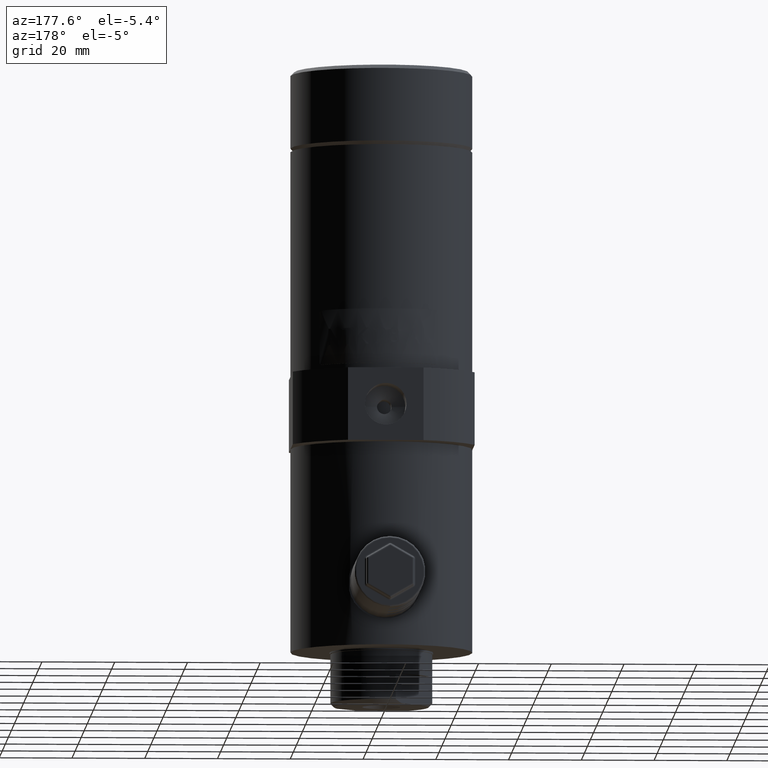
[diagram: clean part render]
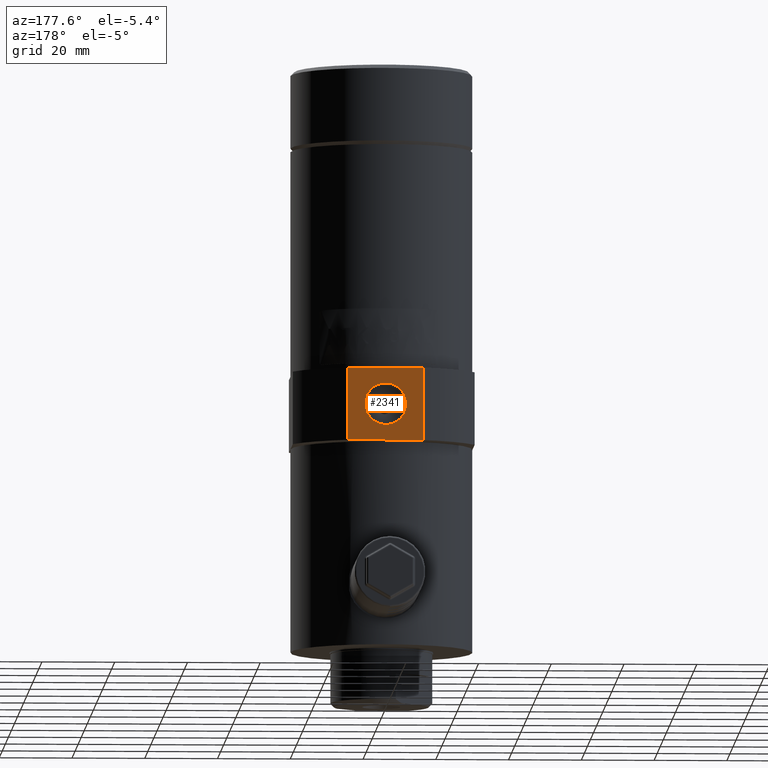
[diagram: same view with one face highlighted and labeled with its STEP entity id]
A machine part, auxiliary view. The second image highlights one B-rep face of the part: STEP entity #2341.
In plain terms, the highlighted planar face has unit normal (0, -1, 0).
Its self-contained STEP definition (entity closure, byte-faithful):
#229 = CARTESIAN_POINT ( 'NONE',  ( 10.39230484541330000, 29.00000000000000000, 5.524683141629100000 ) ) ;
#312 = ORIENTED_EDGE ( 'NONE', *, *, #1903, .F. ) ;
#369 = CARTESIAN_POINT ( 'NONE',  ( -1.999965133326399800E-015, 29.00000000000000000, 71.52468314162909700 ) ) ;
#382 = ORIENTED_EDGE ( 'NONE', *, *, #2523, .F. ) ;
#427 = VECTOR ( 'NONE', #6482, 1000.000000000000000 ) ;
#608 = EDGE_LOOP ( 'NONE', ( #1504, #5013, #2449, #5599 ) ) ;
#703 = VECTOR ( 'NONE', #2202, 1000.000000000000000 ) ;
#781 = DIRECTION ( 'NONE',  ( -2.574111338686239600E-017, 1.838534389698700000E-016, 1.000000000000000000 ) ) ;
#813 = DIRECTION ( 'NONE',  ( -1.000000000000000000, 0.0000000000000000000, 0.0000000000000000000 ) ) ;
#854 = VECTOR ( 'NONE', #2973, 1000.000000000000000 ) ;
#940 = VERTEX_POINT ( 'NONE', #4412 ) ;
#1234 = PLANE ( 'NONE',  #2772 ) ;
#1295 = CARTESIAN_POINT ( 'NONE',  ( -10.39230484541326000, 29.00000000000000000, 81.52468314162909700 ) ) ;
#1487 = VERTEX_POINT ( 'NONE', #1948 ) ;
#1504 = ORIENTED_EDGE ( 'NONE', *, *, #1933, .F. ) ;
#1611 = AXIS2_PLACEMENT_3D ( 'NONE', #369, #1860, #813 ) ;
#1765 = LINE ( 'NONE', #229, #5774 ) ;
#1860 = DIRECTION ( 'NONE',  ( -1.038109137218916000E-017, 1.000000000000000000, -1.038109137218916000E-017 ) ) ;
#1898 = CARTESIAN_POINT ( 'NONE',  ( 10.39230484541327800, 29.00000000000000000, 61.52468314162910400 ) ) ;
#1903 = EDGE_CURVE ( 'NONE', #940, #1487, #4861, .T. ) ;
#1933 = EDGE_CURVE ( 'NONE', #2121, #6092, #4130, .T. ) ;
#1948 = CARTESIAN_POINT ( 'NONE',  ( -5.722500000000001900, 29.00000000000000000, 71.52468314162909700 ) ) ;
#2121 = VERTEX_POINT ( 'NONE', #3674 ) ;
#2202 = DIRECTION ( 'NONE',  ( -1.000000000000000000, -1.038109137218916000E-017, -2.574111338686239600E-017 ) ) ;
#2341 = ADVANCED_FACE ( 'NONE', ( #6478, #2514 ), #1234, .F. ) ;
#2430 = DIRECTION ( 'NONE',  ( -1.000000000000000000, 0.0000000000000000000, 0.0000000000000000000 ) ) ;
#2449 = ORIENTED_EDGE ( 'NONE', *, *, #5286, .T. ) ;
#2514 = FACE_OUTER_BOUND ( 'NONE', #608, .T. ) ;
#2523 = EDGE_CURVE ( 'NONE', #1487, #940, #6293, .T. ) ;
#2559 = LINE ( 'NONE', #4221, #703 ) ;
#2772 = AXIS2_PLACEMENT_3D ( 'NONE', #3884, #6428, #781 ) ;
#2950 = CARTESIAN_POINT ( 'NONE',  ( -1.999965133326399800E-015, 29.00000000000000000, 71.52468314162909700 ) ) ;
#2973 = DIRECTION ( 'NONE',  ( 2.574111338686239600E-017, -1.038109137218916000E-017, -1.000000000000000000 ) ) ;
#3447 = CARTESIAN_POINT ( 'NONE',  ( -10.39230484541330000, 29.00000000000000000, 5.524683141629100000 ) ) ;
#3587 = VERTEX_POINT ( 'NONE', #6605 ) ;
#3674 = CARTESIAN_POINT ( 'NONE',  ( 10.39230484541326000, 29.00000000000000000, 81.52468314162909700 ) ) ;
#3884 = CARTESIAN_POINT ( 'NONE',  ( 28.00000000000000000, 29.00000000000000000, 81.52468314162909700 ) ) ;
#3971 = DIRECTION ( 'NONE',  ( -1.038109137218916000E-017, 1.000000000000000000, -1.038109137218916000E-017 ) ) ;
#4130 = LINE ( 'NONE', #5947, #427 ) ;
#4221 = CARTESIAN_POINT ( 'NONE',  ( -1.742553999457780200E-015, 29.00000000000000000, 61.52468314162910400 ) ) ;
#4322 = VERTEX_POINT ( 'NONE', #1898 ) ;
#4412 = CARTESIAN_POINT ( 'NONE',  ( 5.722499999999998400, 29.00000000000000000, 71.52468314162909700 ) ) ;
#4861 = CIRCLE ( 'NONE', #1611, 5.722500000000000100 ) ;
#4883 = EDGE_CURVE ( 'NONE', #4322, #2121, #1765, .T. ) ;
#5013 = ORIENTED_EDGE ( 'NONE', *, *, #4883, .F. ) ;
#5286 = EDGE_CURVE ( 'NONE', #4322, #3587, #2559, .T. ) ;
#5599 = ORIENTED_EDGE ( 'NONE', *, *, #5819, .F. ) ;
#5676 = EDGE_LOOP ( 'NONE', ( #382, #312 ) ) ;
#5774 = VECTOR ( 'NONE', #5812, 1000.000000000000000 ) ;
#5812 = DIRECTION ( 'NONE',  ( -2.574111338686239600E-017, 1.038109137218916000E-017, 1.000000000000000000 ) ) ;
#5819 = EDGE_CURVE ( 'NONE', #6092, #3587, #6438, .T. ) ;
#5947 = CARTESIAN_POINT ( 'NONE',  ( 28.00000000000000000, 29.00000000000000000, 81.52468314162909700 ) ) ;
#6092 = VERTEX_POINT ( 'NONE', #1295 ) ;
#6293 = CIRCLE ( 'NONE', #6363, 5.722500000000000100 ) ;
#6363 = AXIS2_PLACEMENT_3D ( 'NONE', #2950, #3971, #2430 ) ;
#6428 = DIRECTION ( 'NONE',  ( 1.038109137218913900E-017, -1.000000000000000000, 1.838534389698700000E-016 ) ) ;
#6438 = LINE ( 'NONE', #3447, #854 ) ;
#6478 = FACE_BOUND ( 'NONE', #5676, .T. ) ;
#6482 = DIRECTION ( 'NONE',  ( -1.000000000000000000, -1.038109137218916000E-017, -2.574111338686239600E-017 ) ) ;
#6605 = CARTESIAN_POINT ( 'NONE',  ( -10.39230484541327800, 29.00000000000000000, 61.52468314162910400 ) ) ;